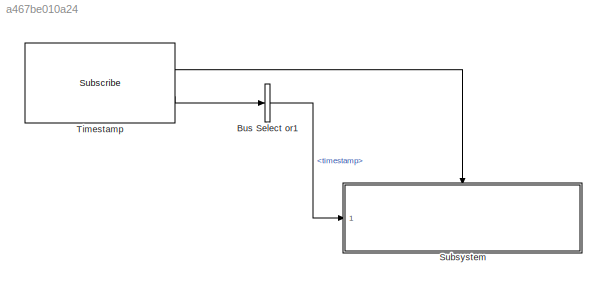
MODEL slx_a467be010a24
KIND model
CONFIG AbsTol = auto
CONFIG EnableMultiTasking = off
CONFIG FixedStep = 0.001
CONFIG MaxStep = auto
CONFIG MinStep = auto
CONFIG RelTol = 1e-3
CONFIG SampleTimeConstraint = Unconstrained
CONFIG SolverName = FixedStepAuto
CONFIG StartTime = 0.0
CONFIG StopTime = inf
BLOCK [BusSelector] Bus Select or1
  OutputSignals = timestamp
  Ports = [1, 1]
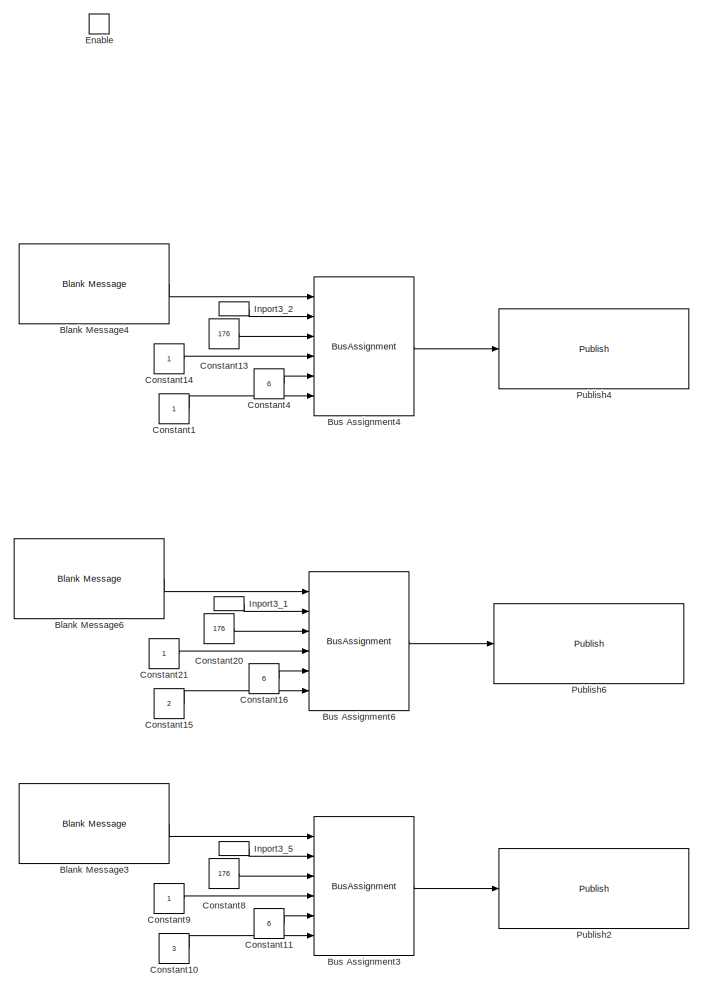
[diagram: Subsystem - part 1/2, right side, full height]
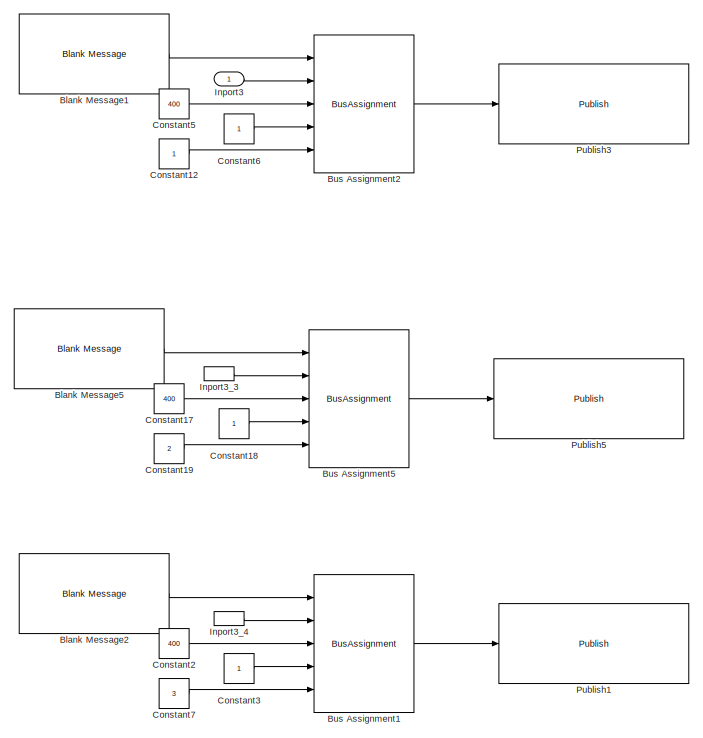
[diagram: Subsystem - part 2/2, middle left region]
BLOCK [SubSystem] Subsystem
  Ports = [1, 0, 1]
  RequestExecContextInheritance = off
BLOCK [Reference] Subsystem/Blank Message1  REF=ros2lib/Blank Message  (lib defined in slx_3c1549211f48)
  Ports = [0, 1]
  SourceBlock = ros2lib/Blank Message
  SourceProductBaseCode = RR
  SourceType = ROS2 Blank Message
BLOCK [Reference] Subsystem/Blank Message2  REF=ros2lib/Blank Message  (lib defined in slx_3c1549211f48)
  Ports = [0, 1]
  SourceBlock = ros2lib/Blank Message
  SourceProductBaseCode = RR
  SourceType = ROS2 Blank Message
BLOCK [Reference] Subsystem/Blank Message3  REF=ros2lib/Blank Message  (lib defined in slx_3c1549211f48)
  Ports = [0, 1]
  SourceBlock = ros2lib/Blank Message
  SourceProductBaseCode = RR
  SourceType = ROS2 Blank Message
BLOCK [Reference] Subsystem/Blank Message4  REF=ros2lib/Blank Message  (lib defined in slx_3c1549211f48)
  Ports = [0, 1]
  SourceBlock = ros2lib/Blank Message
  SourceProductBaseCode = RR
  SourceType = ROS2 Blank Message
BLOCK [Reference] Subsystem/Blank Message5  REF=ros2lib/Blank Message  (lib defined in slx_3c1549211f48)
  Ports = [0, 1]
  SourceBlock = ros2lib/Blank Message
  SourceProductBaseCode = RR
  SourceType = ROS2 Blank Message
BLOCK [Reference] Subsystem/Blank Message6  REF=ros2lib/Blank Message  (lib defined in slx_3c1549211f48)
  Ports = [0, 1]
  SourceBlock = ros2lib/Blank Message
  SourceProductBaseCode = RR
  SourceType = ROS2 Blank Message
BLOCK [BusAssignment] Subsystem/Bus Assignment1
  AssignedSignals = timestamp,command,param1,target_system
  Ports = [5, 1]
BLOCK [BusAssignment] Subsystem/Bus Assignment2
  AssignedSignals = timestamp,command,param1,target_system
  Ports = [5, 1]
BLOCK [BusAssignment] Subsystem/Bus Assignment3
  AssignedSignals = timestamp,command,param1,param2,target_system
  Ports = [6, 1]
BLOCK [BusAssignment] Subsystem/Bus Assignment4
  AssignedSignals = timestamp,command,param1,param2,target_system
  Ports = [6, 1]
BLOCK [BusAssignment] Subsystem/Bus Assignment5
  AssignedSignals = timestamp,command,param1,target_system
  Ports = [5, 1]
BLOCK [BusAssignment] Subsystem/Bus Assignment6
  AssignedSignals = timestamp,command,param1,param2,target_system
  Ports = [6, 1]
BLOCK [Constant] Subsystem/Constant1
  OutDataTypeStr = uint8
BLOCK [Constant] Subsystem/Constant10
  OutDataTypeStr = uint8
  Value = 3
BLOCK [Constant] Subsystem/Constant11
  OutDataTypeStr = single
  Value = 6
BLOCK [Constant] Subsystem/Constant12
  OutDataTypeStr = uint8
BLOCK [Constant] Subsystem/Constant13
  OutDataTypeStr = uint32
  Value = 176
BLOCK [Constant] Subsystem/Constant14
  OutDataTypeStr = single
BLOCK [Constant] Subsystem/Constant15
  OutDataTypeStr = uint8
  Value = 2
BLOCK [Constant] Subsystem/Constant16
  OutDataTypeStr = single
  Value = 6
BLOCK [Constant] Subsystem/Constant17
  OutDataTypeStr = uint32
  Value = 400
BLOCK [Constant] Subsystem/Constant18
  OutDataTypeStr = single
BLOCK [Constant] Subsystem/Constant19
  OutDataTypeStr = uint8
  Value = 2
BLOCK [Constant] Subsystem/Constant2
  OutDataTypeStr = uint32
  Value = 400
BLOCK [Constant] Subsystem/Constant20
  OutDataTypeStr = uint32
  Value = 176
BLOCK [Constant] Subsystem/Constant21
  OutDataTypeStr = single
BLOCK [Constant] Subsystem/Constant3
  OutDataTypeStr = single
BLOCK [Constant] Subsystem/Constant4
  OutDataTypeStr = single
  Value = 6
BLOCK [Constant] Subsystem/Constant5
  OutDataTypeStr = uint32
  Value = 400
BLOCK [Constant] Subsystem/Constant6
  OutDataTypeStr = single
BLOCK [Constant] Subsystem/Constant7
  OutDataTypeStr = uint8
  Value = 3
BLOCK [Constant] Subsystem/Constant8
  OutDataTypeStr = uint32
  Value = 176
BLOCK [Constant] Subsystem/Constant9
  OutDataTypeStr = single
BLOCK [EnablePort] Subsystem/Enable
  Ports = []
BLOCK [Inport] Subsystem/Inport3
BLOCK [InportShadow] Subsystem/Inport3_1
BLOCK [InportShadow] Subsystem/Inport3_2
BLOCK [InportShadow] Subsystem/Inport3_3
BLOCK [InportShadow] Subsystem/Inport3_4
BLOCK [InportShadow] Subsystem/Inport3_5
BLOCK [Reference] Subsystem/Publish1  REF=ros2lib/Publish  (lib defined in slx_3c1549211f48)
  Ports = [1]
  SourceBlock = ros2lib/Publish
  SourceProductBaseCode = RR
  SourceType = ROS2 Publish
BLOCK [Reference] Subsystem/Publish2  REF=ros2lib/Publish  (lib defined in slx_3c1549211f48)
  Ports = [1]
  SourceBlock = ros2lib/Publish
  SourceProductBaseCode = RR
  SourceType = ROS2 Publish
BLOCK [Reference] Subsystem/Publish3  REF=ros2lib/Publish  (lib defined in slx_3c1549211f48)
  Ports = [1]
  SourceBlock = ros2lib/Publish
  SourceProductBaseCode = RR
  SourceType = ROS2 Publish
BLOCK [Reference] Subsystem/Publish4  REF=ros2lib/Publish  (lib defined in slx_3c1549211f48)
  Ports = [1]
  SourceBlock = ros2lib/Publish
  SourceProductBaseCode = RR
  SourceType = ROS2 Publish
BLOCK [Reference] Subsystem/Publish5  REF=ros2lib/Publish  (lib defined in slx_3c1549211f48)
  Ports = [1]
  SourceBlock = ros2lib/Publish
  SourceProductBaseCode = RR
  SourceType = ROS2 Publish
BLOCK [Reference] Subsystem/Publish6  REF=ros2lib/Publish  (lib defined in slx_3c1549211f48)
  Ports = [1]
  SourceBlock = ros2lib/Publish
  SourceProductBaseCode = RR
  SourceType = ROS2 Publish
BLOCK [Reference] Timestamp  REF=ros2lib/Subscribe  (lib defined in slx_3c1549211f48)
  Ports = [0, 2]
  SourceBlock = ros2lib/Subscribe
  SourceProductBaseCode = RR
  SourceType = ROS2 Subscribe
LINE Bus Select or1:1 -> Subsystem:1
LINE Subsystem/Blank Message1:1 -> Subsystem/Bus Assignment2:1
LINE Subsystem/Blank Message2:1 -> Subsystem/Bus Assignment1:1
LINE Subsystem/Blank Message3:1 -> Subsystem/Bus Assignment3:1
LINE Subsystem/Blank Message4:1 -> Subsystem/Bus Assignment4:1
LINE Subsystem/Blank Message5:1 -> Subsystem/Bus Assignment5:1
LINE Subsystem/Blank Message6:1 -> Subsystem/Bus Assignment6:1
LINE Subsystem/Bus Assignment1:1 -> Subsystem/Publish1:1
LINE Subsystem/Bus Assignment2:1 -> Subsystem/Publish3:1
LINE Subsystem/Bus Assignment3:1 -> Subsystem/Publish2:1
LINE Subsystem/Bus Assignment4:1 -> Subsystem/Publish4:1
LINE Subsystem/Bus Assignment5:1 -> Subsystem/Publish5:1
LINE Subsystem/Bus Assignment6:1 -> Subsystem/Publish6:1
LINE Subsystem/Constant10:1 -> Subsystem/Bus Assignment3:6
LINE Subsystem/Constant11:1 -> Subsystem/Bus Assignment3:5
LINE Subsystem/Constant12:1 -> Subsystem/Bus Assignment2:5
LINE Subsystem/Constant13:1 -> Subsystem/Bus Assignment4:3
LINE Subsystem/Constant14:1 -> Subsystem/Bus Assignment4:4
LINE Subsystem/Constant15:1 -> Subsystem/Bus Assignment6:6
LINE Subsystem/Constant16:1 -> Subsystem/Bus Assignment6:5
LINE Subsystem/Constant17:1 -> Subsystem/Bus Assignment5:3
LINE Subsystem/Constant18:1 -> Subsystem/Bus Assignment5:4
LINE Subsystem/Constant19:1 -> Subsystem/Bus Assignment5:5
LINE Subsystem/Constant1:1 -> Subsystem/Bus Assignment4:6
LINE Subsystem/Constant20:1 -> Subsystem/Bus Assignment6:3
LINE Subsystem/Constant21:1 -> Subsystem/Bus Assignment6:4
LINE Subsystem/Constant2:1 -> Subsystem/Bus Assignment1:3
LINE Subsystem/Constant3:1 -> Subsystem/Bus Assignment1:4
LINE Subsystem/Constant4:1 -> Subsystem/Bus Assignment4:5
LINE Subsystem/Constant5:1 -> Subsystem/Bus Assignment2:3
LINE Subsystem/Constant6:1 -> Subsystem/Bus Assignment2:4
LINE Subsystem/Constant7:1 -> Subsystem/Bus Assignment1:5
LINE Subsystem/Constant8:1 -> Subsystem/Bus Assignment3:3
LINE Subsystem/Constant9:1 -> Subsystem/Bus Assignment3:4
LINE Subsystem/Inport3:1 -> Subsystem/Bus Assignment2:2
LINE Subsystem/Inport3_1:1 -> Subsystem/Bus Assignment6:2
LINE Subsystem/Inport3_2:1 -> Subsystem/Bus Assignment4:2
LINE Subsystem/Inport3_3:1 -> Subsystem/Bus Assignment5:2
LINE Subsystem/Inport3_4:1 -> Subsystem/Bus Assignment1:2
LINE Subsystem/Inport3_5:1 -> Subsystem/Bus Assignment3:2
LINE Timestamp:1 -> Subsystem:enable
LINE Timestamp:2 -> Bus Select or1:1
